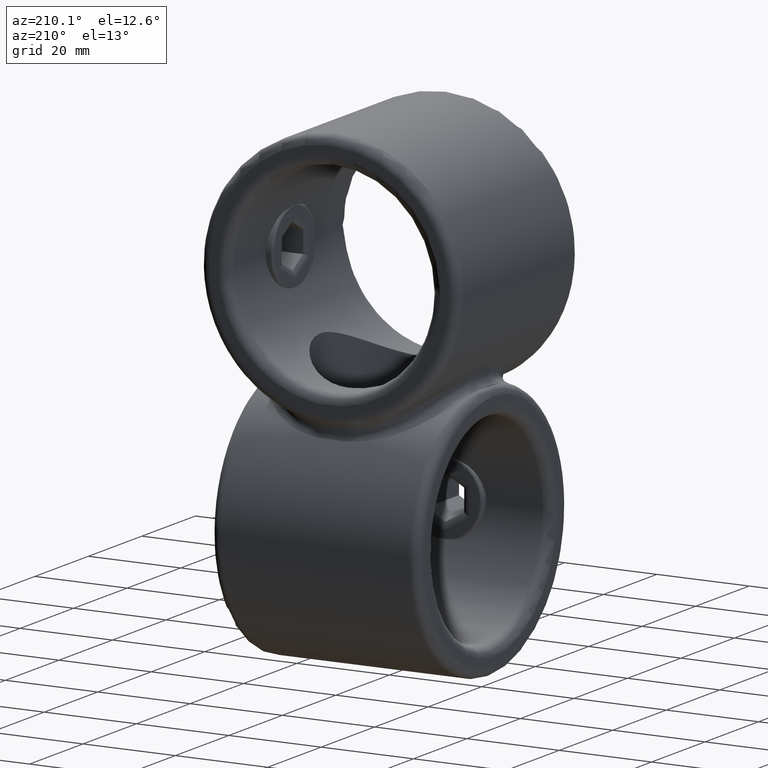
[diagram: clean part render]
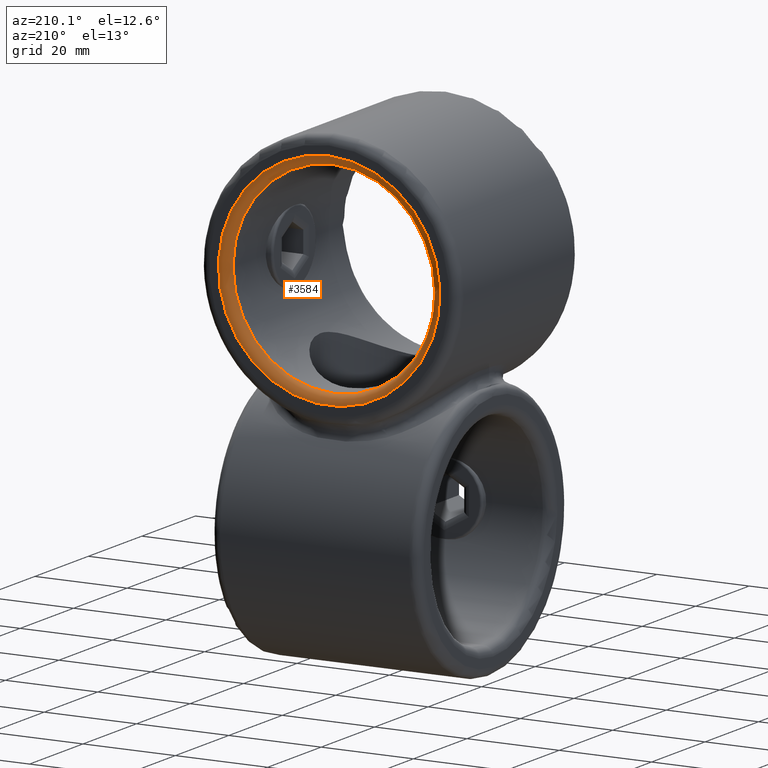
[diagram: same view with one face highlighted and labeled with its STEP entity id]
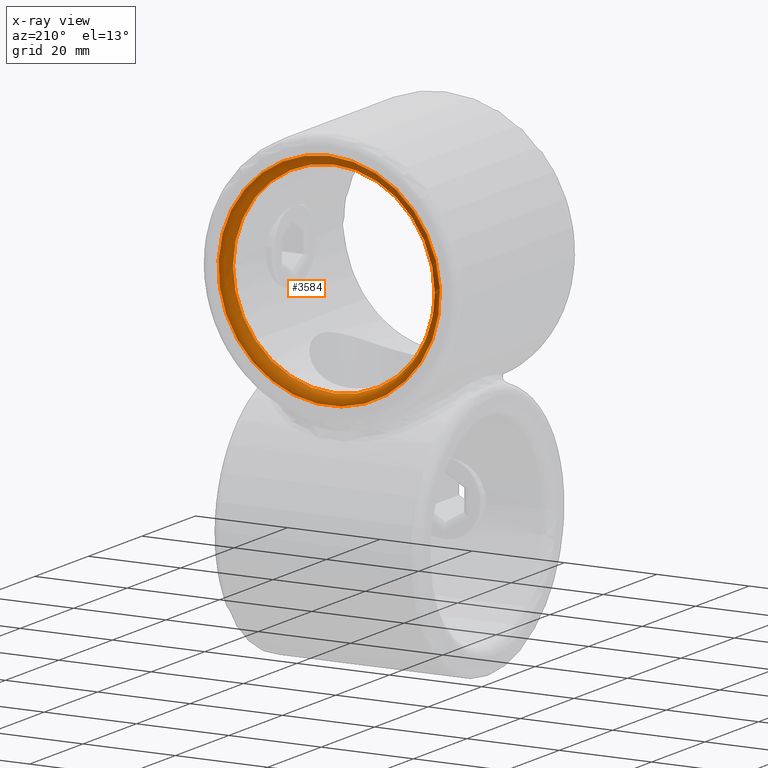
[diagram: x-ray of the same camera — body ghosted, the highlighted face saturated]
A machine part, auxiliary view. The second image highlights one B-rep face of the part: STEP entity #3584.
The next image is the same camera in x-ray: the body ghosted, the highlighted face saturated — about 0% of this face is hidden behind the body in this view.
In plain terms, the highlighted toroidal blend (fillet) surface has major radius 24 mm and minor (blend) radius 2 mm.
Its self-contained STEP definition (entity closure, byte-faithful):
#201 = CARTESIAN_POINT ( 'NONE',  ( 0.000000000000000000, 22.50000000000000000, 24.00000000000000000 ) ) ;
#282 = FACE_OUTER_BOUND ( 'NONE', #2456, .T. ) ;
#320 = DIRECTION ( 'NONE',  ( 0.000000000000000000, 0.000000000000000000, 1.000000000000000000 ) ) ;
#400 = CIRCLE ( 'NONE', #2239, 22.00000000000000000 ) ;
#415 = AXIS2_PLACEMENT_3D ( 'NONE', #750, #2083, #1158 ) ;
#563 = AXIS2_PLACEMENT_3D ( 'NONE', #629, #1179, #320 ) ;
#629 = CARTESIAN_POINT ( 'NONE',  ( 0.000000000000000000, 20.49999999999999645, 0.000000000000000000 ) ) ;
#631 = VERTEX_POINT ( 'NONE', #2358 ) ;
#744 = CIRCLE ( 'NONE', #415, 24.00000000000000000 ) ;
#750 = CARTESIAN_POINT ( 'NONE',  ( 0.000000000000000000, 22.50000000000000000, 0.000000000000000000 ) ) ;
#918 = EDGE_LOOP ( 'NONE', ( #1392 ) ) ;
#1158 = DIRECTION ( 'NONE',  ( 0.000000000000000000, 0.000000000000000000, 1.000000000000000000 ) ) ;
#1179 = DIRECTION ( 'NONE',  ( 0.000000000000000000, 1.000000000000000000, 0.000000000000000000 ) ) ;
#1392 = ORIENTED_EDGE ( 'NONE', *, *, #1654, .F. ) ;
#1446 = CARTESIAN_POINT ( 'NONE',  ( 0.000000000000000000, 20.49999999999999645, 0.000000000000000000 ) ) ;
#1654 = EDGE_CURVE ( 'NONE', #631, #631, #400, .T. ) ;
#2083 = DIRECTION ( 'NONE',  ( -0.000000000000000000, -1.000000000000000000, -0.000000000000000000 ) ) ;
#2118 = ORIENTED_EDGE ( 'NONE', *, *, #2992, .F. ) ;
#2239 = AXIS2_PLACEMENT_3D ( 'NONE', #1446, #2733, #3664 ) ;
#2358 = CARTESIAN_POINT ( 'NONE',  ( 0.000000000000000000, 20.49999999999999645, 22.00000000000000000 ) ) ;
#2440 = FACE_OUTER_BOUND ( 'NONE', #918, .T. ) ;
#2456 = EDGE_LOOP ( 'NONE', ( #2118 ) ) ;
#2733 = DIRECTION ( 'NONE',  ( 0.000000000000000000, 1.000000000000000000, 0.000000000000000000 ) ) ;
#2850 = TOROIDAL_SURFACE ( 'NONE', #563, 24.00000000000000000, 2.000000000000000000 ) ;
#2992 = EDGE_CURVE ( 'NONE', #3290, #3290, #744, .T. ) ;
#3290 = VERTEX_POINT ( 'NONE', #201 ) ;
#3584 = ADVANCED_FACE ( 'NONE', ( #282, #2440 ), #2850, .T. ) ;
#3664 = DIRECTION ( 'NONE',  ( 0.000000000000000000, 0.000000000000000000, 1.000000000000000000 ) ) ;